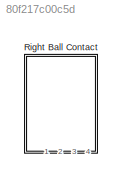
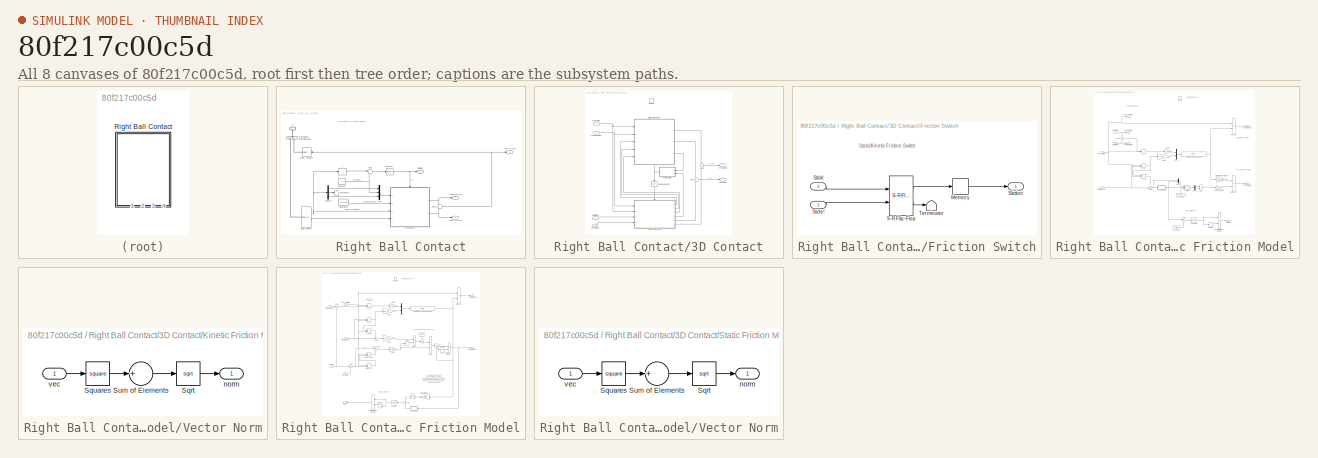
[diagram: thumbnail index - all 8 canvases of the model, root first then tree order]
MODEL slx_80f217c00c5d
KIND model
BLOCK [SubSystem] Right Ball Contact
  Ports = [0, 4, 0, 0, 0, 1]
  RequestExecContextInheritance = off
BLOCK [SubSystem] Right Ball Contact/3D Contact
  Ports = [4, 2, 1]
  RequestExecContextInheritance = off
BLOCK [EnablePort] Right Ball Contact/3D Contact/Contact!
  Ports = []
  StatesWhenEnabling = reset
BLOCK [Outport] Right Ball Contact/3D Contact/FnVec [N N N]
  AttributesFormatString = when disabled: %<OutputWhenDisabled>
  IconDisplay = Port number
  InitialOutput = [0 0 0]
  OutputWhenDisabled = reset
BLOCK [SubSystem] Right Ball Contact/3D Contact/Friction Switch
  Ports = [2, 1]
  RequestExecContextInheritance = off
BLOCK [Memory] Right Ball Contact/3D Contact/Friction Switch/Memory
BLOCK [Reference] Right Ball Contact/3D Contact/Friction Switch/S-R Flip-Flop  REF=simulink_extras/Flip Flops/S-R
Flip-Flop
  Ports = [2, 2]
  SourceBlock = simulink_extras/Flip Flops/S-R\nFlip-Flop
  SourceType = SRFlipFlop
  initial_condition = 0
BLOCK [Inport] Right Ball Contact/3D Contact/Friction Switch/Slide!
  IconDisplay = Port number
BLOCK [Inport] Right Ball Contact/3D Contact/Friction Switch/Stick!
  IconDisplay = Port number
  Port = 2
BLOCK [Outport] Right Ball Contact/3D Contact/Friction Switch/Stiction
  IconDisplay = Port number
BLOCK [Terminator] Right Ball Contact/3D Contact/Friction Switch/Terminator
BLOCK [Outport] Right Ball Contact/3D Contact/FtVec [N N N]
  AttributesFormatString = when disabled: %<OutputWhenDisabled>
  IconDisplay = Port number
  InitialOutput = [0 0 0]
  OutputWhenDisabled = reset
  Port = 2
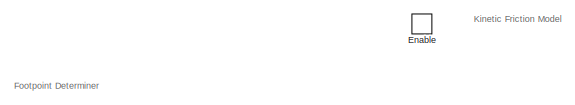
[diagram: Right Ball Contact/3D Contact/Kinetic Friction Model - part 1/2, top center region]
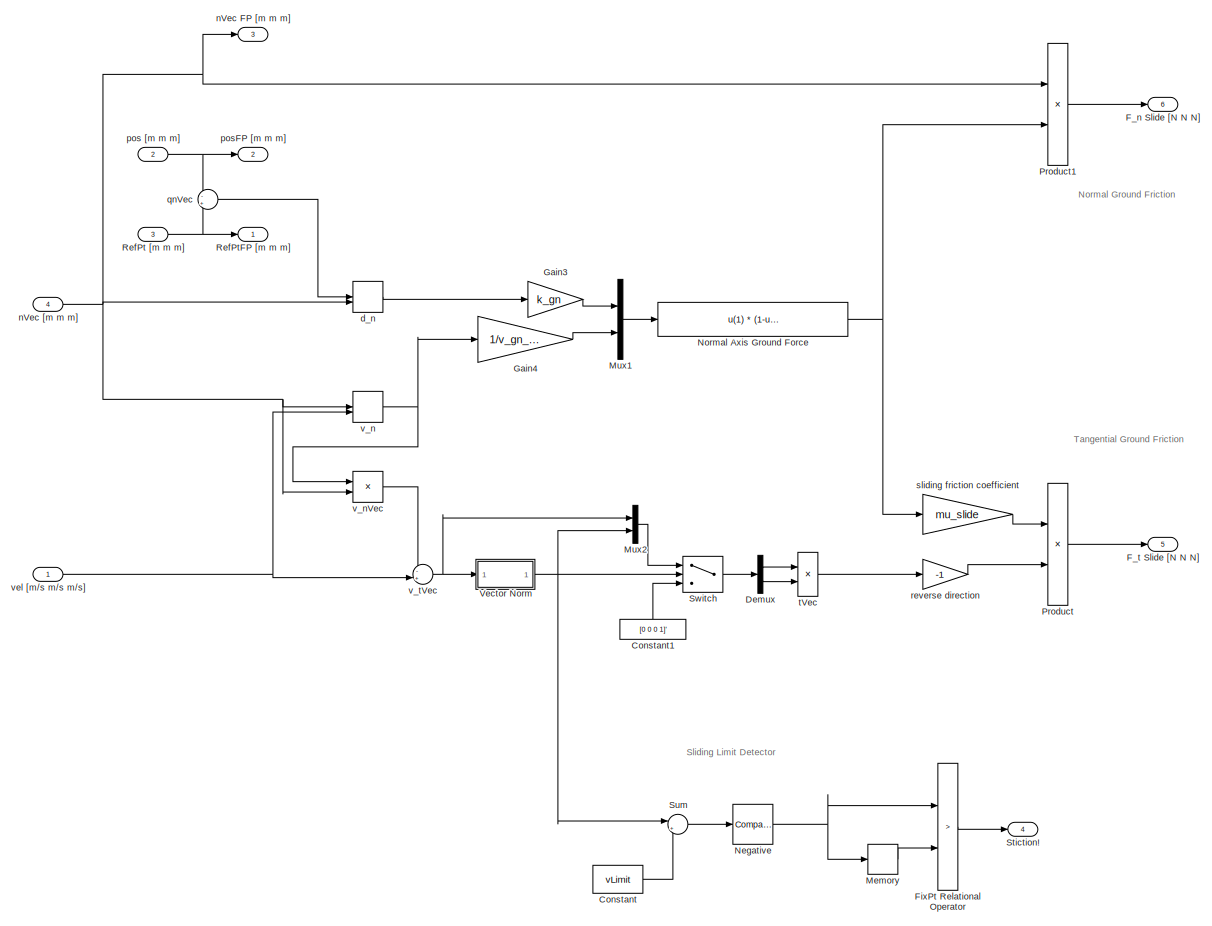
[diagram: Right Ball Contact/3D Contact/Kinetic Friction Model - part 2/2, most of the canvas]
BLOCK [SubSystem] Right Ball Contact/3D Contact/Kinetic Friction Model
  Ports = [4, 6, 1]
  RequestExecContextInheritance = off
BLOCK [Constant] Right Ball Contact/3D Contact/Kinetic Friction Model/Constant
  Value = vLimit
BLOCK [Constant] Right Ball Contact/3D Contact/Kinetic Friction Model/Constant1
  Value = [0 0 0 1]'
BLOCK [Demux] Right Ball Contact/3D Contact/Kinetic Friction Model/Demux
  DisplayOption = bar
  Outputs = [3 1]
  Ports = [1, 2]
BLOCK [EnablePort] Right Ball Contact/3D Contact/Kinetic Friction Model/Enable
  Ports = []
  StatesWhenEnabling = reset
  ZeroCross = off
BLOCK [Outport] Right Ball Contact/3D Contact/Kinetic Friction Model/F_n Slide [N N N]
  AttributesFormatString = initial = '%<InitialOutput>'\nwhen disabled = '%<OutputWhenDisabled>'
  IconDisplay = Port number
  InitialOutput = [0 0 0]
  OutputWhenDisabled = reset
  Port = 6
BLOCK [Outport] Right Ball Contact/3D Contact/Kinetic Friction Model/F_t Slide [N N N]
  AttributesFormatString = initial = '%<InitialOutput>'\nwhen disabled = '%<OutputWhenDisabled>'
  IconDisplay = Port number
  InitialOutput = [0 0 0]
  OutputWhenDisabled = reset
  Port = 5
BLOCK [RelationalOperator] Right Ball Contact/3D Contact/Kinetic Friction Model/FixPt Relational Operator
  InputSameDT = off
  Operator = >
  OutDataTypeStr = boolean
  Ports = [2, 1]
  ZeroCross = off
BLOCK [Gain] Right Ball Contact/3D Contact/Kinetic Friction Model/Gain3
  Gain = k_gn
  OutDataTypeStr = Inherit: Inherit via internal rule
  ParamDataTypeStr = Inherit: Inherit via internal rule
  SaturateOnIntegerOverflow = off
BLOCK [Gain] Right Ball Contact/3D Contact/Kinetic Friction Model/Gain4
  Gain = 1/v_gn_max
  OutDataTypeStr = Inherit: Inherit via internal rule
  ParamDataTypeStr = Inherit: Inherit via internal rule
  SaturateOnIntegerOverflow = off
BLOCK [Memory] Right Ball Contact/3D Contact/Kinetic Friction Model/Memory
BLOCK [Mux] Right Ball Contact/3D Contact/Kinetic Friction Model/Mux1
  DisplayOption = bar
  Inputs = 2
  Ports = [2, 1]
BLOCK [Mux] Right Ball Contact/3D Contact/Kinetic Friction Model/Mux2
  DisplayOption = bar
  Inputs = 2
  Ports = [2, 1]
BLOCK [Reference] Right Ball Contact/3D Contact/Kinetic Friction Model/Negative  REF=simulink/Logic and Bit
Operations/Compare
To Zero
  OutDataTypeStr = boolean
  Ports = [1, 1]
  SourceBlock = simulink/Logic and Bit\nOperations/Compare\nTo Zero
  SourceType = Compare To Zero
  ZeroCross = on
  relop = <
BLOCK [Fcn] Right Ball Contact/3D Contact/Kinetic Friction Model/Normal Axis Ground Force
  Expr = u(1)  *  (1-u(2)) * (u(2)<1)
BLOCK [Product] Right Ball Contact/3D Contact/Kinetic Friction Model/Product
  InputSameDT = off
  OutDataTypeStr = Inherit: Inherit via internal rule
  Ports = [2, 1]
  SaturateOnIntegerOverflow = off
BLOCK [Product] Right Ball Contact/3D Contact/Kinetic Friction Model/Product1
  InputSameDT = off
  OutDataTypeStr = Inherit: Inherit via internal rule
  Ports = [2, 1]
  SaturateOnIntegerOverflow = off
BLOCK [Inport] Right Ball Contact/3D Contact/Kinetic Friction Model/RefPt [m m m]
  IconDisplay = Port number
  Port = 3
BLOCK [Outport] Right Ball Contact/3D Contact/Kinetic Friction Model/RefPtFP [m m m]
  AttributesFormatString = initial = '%<InitialOutput>'\nwhen disabled = '%<OutputWhenDisabled>'
  IconDisplay = Port number
  InitialOutput = [0 0 0]
BLOCK [Outport] Right Ball Contact/3D Contact/Kinetic Friction Model/Stiction!
  AttributesFormatString = initial = '%<InitialOutput>'\nwhen disabled = '%<OutputWhenDisabled>'
  IconDisplay = Port number
  InitialOutput = 0
  OutputWhenDisabled = reset
  Port = 4
BLOCK [Sum] Right Ball Contact/3D Contact/Kinetic Friction Model/Sum
  IconShape = round
  InputSameDT = off
  Inputs = |+-
  OutDataTypeStr = Inherit: Inherit via internal rule
  Ports = [2, 1]
  SaturateOnIntegerOverflow = off
BLOCK [Switch] Right Ball Contact/3D Contact/Kinetic Friction Model/Switch
  AttributesFormatString = >%<Threshold>?
  Criteria = u2 > Threshold
  InputSameDT = off
  SaturateOnIntegerOverflow = off
  Threshold = 0.9*vLimit
BLOCK [SubSystem] Right Ball Contact/3D Contact/Kinetic Friction Model/Vector Norm
  Ports = [1, 1]
  RequestExecContextInheritance = off
BLOCK [Sqrt] Right Ball Contact/3D Contact/Kinetic Friction Model/Vector Norm/Sqrt
  AlgorithmType = Newton-Raphson
  OutputSignalType = real
BLOCK [Math] Right Ball Contact/3D Contact/Kinetic Friction Model/Vector Norm/Squares
  Operator = square
  OutputSignalType = real
  Ports = [1, 1]
BLOCK [Sum] Right Ball Contact/3D Contact/Kinetic Friction Model/Vector Norm/Sum of Elements
  IconShape = round
  InputSameDT = off
  Inputs = +
  OutDataTypeStr = Inherit: Inherit via internal rule
  Ports = [1, 1]
  SaturateOnIntegerOverflow = off
BLOCK [Outport] Right Ball Contact/3D Contact/Kinetic Friction Model/Vector Norm/norm
  IconDisplay = Port number
BLOCK [Inport] Right Ball Contact/3D Contact/Kinetic Friction Model/Vector Norm/vec
  IconDisplay = Port number
BLOCK [DotProduct] Right Ball Contact/3D Contact/Kinetic Friction Model/d_n
  OutDataTypeStr = Inherit: Inherit via internal rule
BLOCK [Outport] Right Ball Contact/3D Contact/Kinetic Friction Model/nVec FP [m m m]
  AttributesFormatString = initial = '%<InitialOutput>'\nwhen disabled = '%<OutputWhenDisabled>'
  IconDisplay = Port number
  InitialOutput = 0
  Port = 3
BLOCK [Inport] Right Ball Contact/3D Contact/Kinetic Friction Model/nVec [m m m]
  IconDisplay = Port number
  Port = 4
BLOCK [Inport] Right Ball Contact/3D Contact/Kinetic Friction Model/pos [m m m]
  IconDisplay = Port number
  Port = 2
BLOCK [Outport] Right Ball Contact/3D Contact/Kinetic Friction Model/posFP [m m m]
  AttributesFormatString = initial = '%<InitialOutput>'\nwhen disabled = '%<OutputWhenDisabled>'
  IconDisplay = Port number
  InitialOutput = [0 0 0]
  Port = 2
BLOCK [Sum] Right Ball Contact/3D Contact/Kinetic Friction Model/qnVec
  IconShape = round
  InputSameDT = off
  Inputs = -+
  OutDataTypeStr = Inherit: Inherit via internal rule
  Ports = [2, 1]
  SaturateOnIntegerOverflow = off
BLOCK [Gain] Right Ball Contact/3D Contact/Kinetic Friction Model/reverse direction
  Gain = -1
  OutDataTypeStr = Inherit: Inherit via internal rule
  ParamDataTypeStr = Inherit: Inherit via internal rule
  SaturateOnIntegerOverflow = off
BLOCK [Gain] Right Ball Contact/3D Contact/Kinetic Friction Model/sliding friction coefficient
  Gain = mu_slide
  OutDataTypeStr = Inherit: Inherit via internal rule
  ParamDataTypeStr = Inherit: Inherit via internal rule
  SaturateOnIntegerOverflow = off
BLOCK [Product] Right Ball Contact/3D Contact/Kinetic Friction Model/tVec
  InputSameDT = off
  Inputs = */
  OutDataTypeStr = Inherit: Inherit via internal rule
  Ports = [2, 1]
  SaturateOnIntegerOverflow = off
BLOCK [DotProduct] Right Ball Contact/3D Contact/Kinetic Friction Model/v_n
  OutDataTypeStr = Inherit: Inherit via internal rule
BLOCK [Product] Right Ball Contact/3D Contact/Kinetic Friction Model/v_nVec
  InputSameDT = off
  OutDataTypeStr = Inherit: Inherit via internal rule
  Ports = [2, 1]
  SaturateOnIntegerOverflow = off
BLOCK [Sum] Right Ball Contact/3D Contact/Kinetic Friction Model/v_tVec
  IconShape = round
  InputSameDT = off
  Inputs = -+|
  OutDataTypeStr = Inherit: Inherit via internal rule
  Ports = [2, 1]
  SaturateOnIntegerOverflow = off
BLOCK [Inport] Right Ball Contact/3D Contact/Kinetic Friction Model/vel [m//s m//s m//s]
  IconDisplay = Port number
BLOCK [Logic] Right Ball Contact/3D Contact/Logical Operator
  AllPortsSameDT = off
  Operator = NOT
  OutDataTypeStr = boolean
  Ports = [1, 1]
BLOCK [Inport] Right Ball Contact/3D Contact/RefPt [m m m]
  IconDisplay = Port number
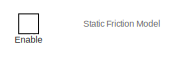
[diagram: Right Ball Contact/3D Contact/Static Friction Model - part 1/2, top center region]
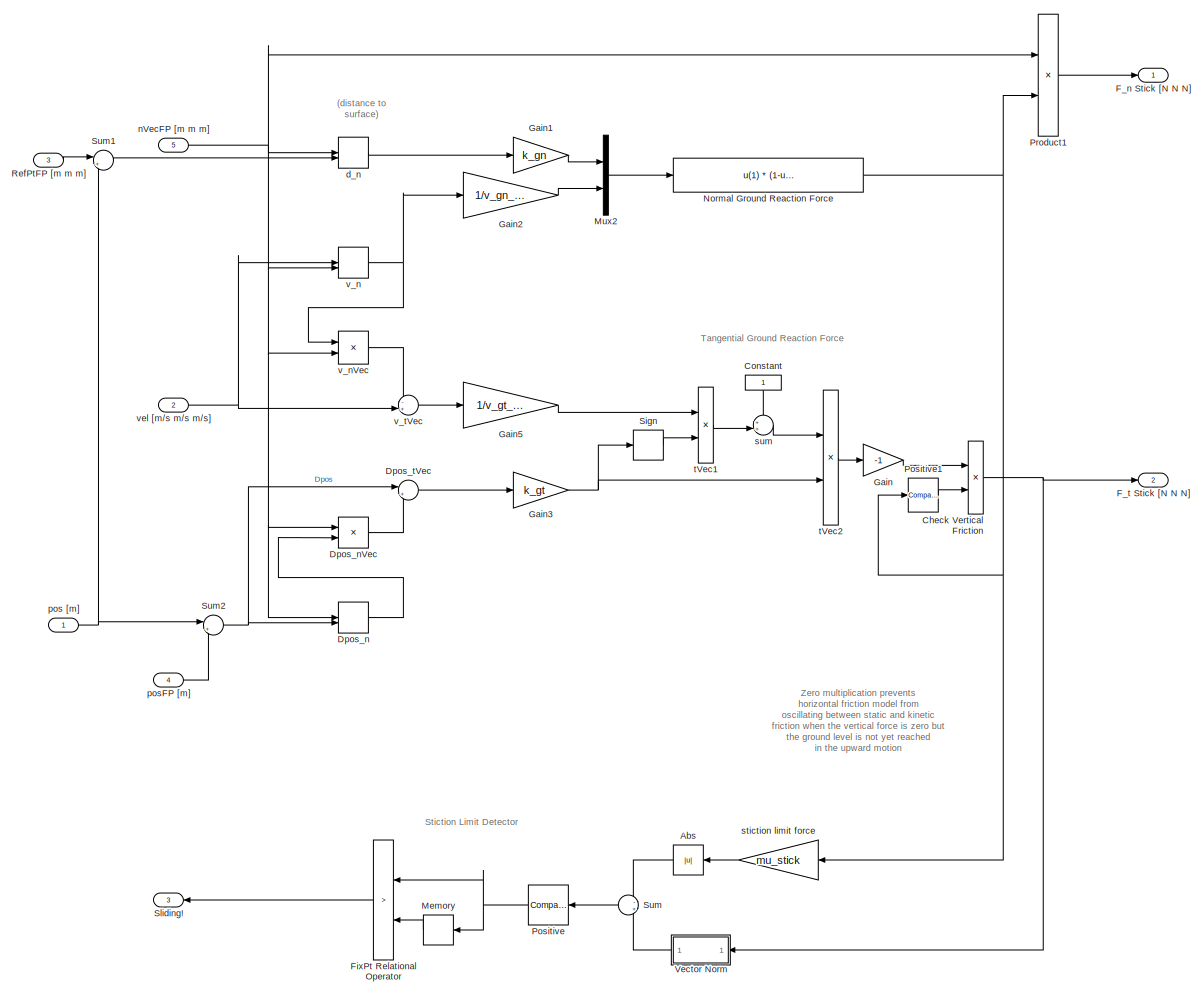
[diagram: Right Ball Contact/3D Contact/Static Friction Model - part 2/2, most of the canvas]
BLOCK [SubSystem] Right Ball Contact/3D Contact/Static Friction Model
  Ports = [5, 3, 1]
  RequestExecContextInheritance = off
BLOCK [Abs] Right Ball Contact/3D Contact/Static Friction Model/Abs
  SaturateOnIntegerOverflow = off
BLOCK [Product] Right Ball Contact/3D Contact/Static Friction Model/Check Vertical Friction
  InputSameDT = off
  OutDataTypeStr = Inherit: Inherit via internal rule
  Ports = [2, 1]
  SaturateOnIntegerOverflow = off
BLOCK [Constant] Right Ball Contact/3D Contact/Static Friction Model/Constant
BLOCK [DotProduct] Right Ball Contact/3D Contact/Static Friction Model/Dpos_n
  OutDataTypeStr = Inherit: Inherit via internal rule
BLOCK [Product] Right Ball Contact/3D Contact/Static Friction Model/Dpos_nVec
  InputSameDT = off
  OutDataTypeStr = Inherit: Inherit via internal rule
  Ports = [2, 1]
  SaturateOnIntegerOverflow = off
BLOCK [Sum] Right Ball Contact/3D Contact/Static Friction Model/Dpos_tVec
  IconShape = round
  InputSameDT = off
  Inputs = |+-
  OutDataTypeStr = Inherit: Inherit via internal rule
  Ports = [2, 1]
  SaturateOnIntegerOverflow = off
BLOCK [EnablePort] Right Ball Contact/3D Contact/Static Friction Model/Enable
  Ports = []
  StatesWhenEnabling = reset
  ZeroCross = off
BLOCK [Outport] Right Ball Contact/3D Contact/Static Friction Model/F_n Stick [N N N]
  AttributesFormatString = initial = '%<InitialOutput>'\nwhen disabled = '%<OutputWhenDisabled>'
  IconDisplay = Port number
  InitialOutput = [0 0 0]
  OutputWhenDisabled = reset
BLOCK [Outport] Right Ball Contact/3D Contact/Static Friction Model/F_t Stick [N N N]
  AttributesFormatString = when disabled: %<OutputWhenDisabled>\ninitial: %<InitialOutput>
  IconDisplay = Port number
  InitialOutput = [0 0 0]
  OutputWhenDisabled = reset
  Port = 2
BLOCK [RelationalOperator] Right Ball Contact/3D Contact/Static Friction Model/FixPt Relational Operator
  InputSameDT = off
  Operator = >
  OutDataTypeStr = boolean
  Ports = [2, 1]
  ZeroCross = off
BLOCK [Gain] Right Ball Contact/3D Contact/Static Friction Model/Gain
  Gain = -1
  OutDataTypeStr = Inherit: Inherit via internal rule
  ParamDataTypeStr = Inherit: Inherit via internal rule
  SaturateOnIntegerOverflow = off
BLOCK [Gain] Right Ball Contact/3D Contact/Static Friction Model/Gain1
  Gain = k_gn
  OutDataTypeStr = Inherit: Inherit via internal rule
  ParamDataTypeStr = Inherit: Inherit via internal rule
  SaturateOnIntegerOverflow = off
BLOCK [Gain] Right Ball Contact/3D Contact/Static Friction Model/Gain2
  Gain = 1/v_gn_max
  OutDataTypeStr = Inherit: Inherit via internal rule
  ParamDataTypeStr = Inherit: Inherit via internal rule
  SaturateOnIntegerOverflow = off
BLOCK [Gain] Right Ball Contact/3D Contact/Static Friction Model/Gain3
  Gain = k_gt
  OutDataTypeStr = Inherit: Inherit via internal rule
  ParamDataTypeStr = Inherit: Inherit via internal rule
  SaturateOnIntegerOverflow = off
BLOCK [Gain] Right Ball Contact/3D Contact/Static Friction Model/Gain5
  Gain = 1/v_gt_max
  OutDataTypeStr = Inherit: Inherit via internal rule
  ParamDataTypeStr = Inherit: Inherit via internal rule
  SaturateOnIntegerOverflow = off
BLOCK [Memory] Right Ball Contact/3D Contact/Static Friction Model/Memory
BLOCK [Mux] Right Ball Contact/3D Contact/Static Friction Model/Mux2
  DisplayOption = bar
  Inputs = 2
  Ports = [2, 1]
BLOCK [Fcn] Right Ball Contact/3D Contact/Static Friction Model/Normal Ground Reaction Force
  Expr = u(1)  *  (1-u(2)) * (u(2)<1)
BLOCK [Reference] Right Ball Contact/3D Contact/Static Friction Model/Positive  REF=simulink/Logic and Bit
Operations/Compare
To Zero
  OutDataTypeStr = boolean
  Ports = [1, 1]
  SourceBlock = simulink/Logic and Bit\nOperations/Compare\nTo Zero
  SourceType = Compare To Zero
  ZeroCross = on
  relop = >
BLOCK [Reference] Right Ball Contact/3D Contact/Static Friction Model/Positive1  REF=simulink/Logic and Bit
Operations/Compare
To Zero
  OutDataTypeStr = boolean
  Ports = [1, 1]
  SourceBlock = simulink/Logic and Bit\nOperations/Compare\nTo Zero
  SourceType = Compare To Zero
  ZeroCross = on
  relop = >
BLOCK [Product] Right Ball Contact/3D Contact/Static Friction Model/Product1
  InputSameDT = off
  OutDataTypeStr = Inherit: Inherit via internal rule
  Ports = [2, 1]
  SaturateOnIntegerOverflow = off
BLOCK [Inport] Right Ball Contact/3D Contact/Static Friction Model/RefPtFP [m m m]
  IconDisplay = Port number
  Port = 3
BLOCK [Signum] Right Ball Contact/3D Contact/Static Friction Model/Sign
  ZeroCross = off
BLOCK [Outport] Right Ball Contact/3D Contact/Static Friction Model/Sliding!
  AttributesFormatString = when disabled: %<OutputWhenDisabled>\ninitial: %<InitialOutput>
  IconDisplay = Port number
  InitialOutput = 0
  OutputWhenDisabled = reset
  Port = 3
BLOCK [Sum] Right Ball Contact/3D Contact/Static Friction Model/Sum
  IconShape = round
  InputSameDT = off
  Inputs = -+
  OutDataTypeStr = Inherit: Inherit via internal rule
  Ports = [2, 1]
  SaturateOnIntegerOverflow = off
BLOCK [Sum] Right Ball Contact/3D Contact/Static Friction Model/Sum1
  IconShape = round
  InputSameDT = off
  Inputs = |+-
  OutDataTypeStr = Inherit: Inherit via internal rule
  Ports = [2, 1]
  SaturateOnIntegerOverflow = off
BLOCK [Sum] Right Ball Contact/3D Contact/Static Friction Model/Sum2
  IconShape = round
  InputSameDT = off
  Inputs = |+-
  OutDataTypeStr = Inherit: Inherit via internal rule
  Ports = [2, 1]
  SaturateOnIntegerOverflow = off
BLOCK [SubSystem] Right Ball Contact/3D Contact/Static Friction Model/Vector Norm
  Ports = [1, 1]
  RequestExecContextInheritance = off
BLOCK [Sqrt] Right Ball Contact/3D Contact/Static Friction Model/Vector Norm/Sqrt
  AlgorithmType = Newton-Raphson
  OutputSignalType = real
BLOCK [Math] Right Ball Contact/3D Contact/Static Friction Model/Vector Norm/Squares
  Operator = square
  OutputSignalType = real
  Ports = [1, 1]
BLOCK [Sum] Right Ball Contact/3D Contact/Static Friction Model/Vector Norm/Sum of Elements
  IconShape = round
  InputSameDT = off
  Inputs = +
  OutDataTypeStr = Inherit: Inherit via internal rule
  Ports = [1, 1]
  SaturateOnIntegerOverflow = off
BLOCK [Outport] Right Ball Contact/3D Contact/Static Friction Model/Vector Norm/norm
  IconDisplay = Port number
BLOCK [Inport] Right Ball Contact/3D Contact/Static Friction Model/Vector Norm/vec
  IconDisplay = Port number
BLOCK [DotProduct] Right Ball Contact/3D Contact/Static Friction Model/d_n
  OutDataTypeStr = Inherit: Inherit via internal rule
BLOCK [Inport] Right Ball Contact/3D Contact/Static Friction Model/nVecFP [m m m]
  IconDisplay = Port number
  Port = 5
BLOCK [Inport] Right Ball Contact/3D Contact/Static Friction Model/pos [m]
  IconDisplay = Port number
BLOCK [Inport] Right Ball Contact/3D Contact/Static Friction Model/posFP [m]
  IconDisplay = Port number
  Port = 4
BLOCK [Gain] Right Ball Contact/3D Contact/Static Friction Model/stiction limit force
  Gain = mu_stick
  OutDataTypeStr = Inherit: Inherit via internal rule
  ParamDataTypeStr = Inherit: Inherit via internal rule
  SaturateOnIntegerOverflow = off
BLOCK [Sum] Right Ball Contact/3D Contact/Static Friction Model/sum
  IconShape = round
  InputSameDT = off
  Inputs = ++|
  OutDataTypeStr = Inherit: Inherit via internal rule
  Ports = [2, 1]
  SaturateOnIntegerOverflow = off
BLOCK [Product] Right Ball Contact/3D Contact/Static Friction Model/tVec1
  InputSameDT = off
  Inputs = **
  OutDataTypeStr = Inherit: Inherit via internal rule
  Ports = [2, 1]
  SaturateOnIntegerOverflow = off
BLOCK [Product] Right Ball Contact/3D Contact/Static Friction Model/tVec2
  InputSameDT = off
  Inputs = **
  OutDataTypeStr = Inherit: Inherit via internal rule
  Ports = [2, 1]
  SaturateOnIntegerOverflow = off
BLOCK [DotProduct] Right Ball Contact/3D Contact/Static Friction Model/v_n
  OutDataTypeStr = Inherit: Inherit via internal rule
BLOCK [Product] Right Ball Contact/3D Contact/Static Friction Model/v_nVec
  InputSameDT = off
  OutDataTypeStr = Inherit: Inherit via internal rule
  Ports = [2, 1]
  SaturateOnIntegerOverflow = off
BLOCK [Sum] Right Ball Contact/3D Contact/Static Friction Model/v_tVec
  IconShape = round
  InputSameDT = off
  Inputs = -+|
  OutDataTypeStr = Inherit: Inherit via internal rule
  Ports = [2, 1]
  SaturateOnIntegerOverflow = off
BLOCK [Inport] Right Ball Contact/3D Contact/Static Friction Model/vel [m//s m//s m//s]
  IconDisplay = Port number
  Port = 2
BLOCK [Sum] Right Ball Contact/3D Contact/Sum
  IconShape = round
  InputSameDT = off
  OutDataTypeStr = Inherit: Inherit via internal rule
  Ports = [2, 1]
  SaturateOnIntegerOverflow = off
BLOCK [Sum] Right Ball Contact/3D Contact/Sum1
  IconShape = round
  InputSameDT = off
  OutDataTypeStr = Inherit: Inherit via internal rule
  Ports = [2, 1]
  SaturateOnIntegerOverflow = off
BLOCK [Inport] Right Ball Contact/3D Contact/nVec [m m m]
  IconDisplay = Port number
  Port = 2
BLOCK [Inport] Right Ball Contact/3D Contact/pVec [m m m]
  IconDisplay = Port number
  Port = 3
BLOCK [Inport] Right Ball Contact/3D Contact/vVec [m//s m//s m//s]
  IconDisplay = Port number
  Port = 4
BLOCK [Reference] Right Ball Contact/Body Actuator  REF=mblibv1/Sensors & 
Actuators/Body Actuator
  AccelerationUnits = m/s^2
  ActiveIO = off
  ActuationStyle = Force
  Angle = off
  AngleUnits = deg
  ArcAccelerationUnits = deg/s^2
  ArcVelocityUnits = deg/s
  ClassName = BodyActuatorForceTorque
  CoordPosition = on
  CoordPositionUnits = m
  DialogClass = MechanicalActuatorBlock
  Force = on
  ForceUnits = N
  PhysicalDomain = Mechanical
  PortType = blob
  Ports = [1, 0, 0, 0, 0, 0, 1]
  ReferenceFrame = Absolute (World)
  SourceBlock = mblibv1/Sensors & \nActuators/Body Actuator
  SourceType = Body Actuator
  Torque = off
  TorqueUnits = N*m
  UpdateFromCAD = off
  VelocityUnits = m/s
  Width = 3
BLOCK [Reference] Right Ball Contact/Body Sensor  REF=mblibv1/Sensors & 
Actuators/Body Sensor
  Acceleration = off
  AccelerationUnits = m/s^2
  ActiveIO = off
  Angle = on
  AngleUnits = deg
  ArcAcceleration = off
  ArcAccelerationUnits = deg/s^2
  ArcVelocity = off
  ArcVelocityUnits = deg/s
  ClassName = BodySensor
  CoordPosition = on
  CoordPositionUnits = m
  DialogClass = MechanicalSensorBlock
  Muxed = off
  OutputVector = [ 3 3 ]
  PhysicalDomain = Mechanical
  PortType = blob
  Ports = [0, 2, 0, 0, 0, 1]
  Pose = off
  Quaternion = on
  QuaternionDDT = off
  QuaternionDT = off
  QuaternionUnits = off
  ReferenceFrame = Absolute (World)
  SourceBlock = mblibv1/Sensors & \nActuators/Body Sensor
  SourceType = Body Sensor
  UpdateFromCAD = off
  Velocity = on
  VelocityUnits = m/s
  Width = 6
BLOCK [Constant] Right Ball Contact/Constant
  Value = 0
BLOCK [Constant] Right Ball Contact/Constant1
  Value = [0 1 0]
BLOCK [Demux] Right Ball Contact/Demux
  DisplayOption = bar
  Outputs = 3
  Ports = [1, 3]
BLOCK [PMIOPort] Right Ball Contact/F
  Port = 1
  Side = Left
BLOCK [Outport] Right Ball Contact/GRF [N N N]
  IconDisplay = Port number
  Port = 2
BLOCK [Outport] Right Ball Contact/GRFn [N N N]
  IconDisplay = Port number
  Port = 4
BLOCK [Outport] Right Ball Contact/GRFt [N N N]
  IconDisplay = Port number
  Port = 3
BLOCK [Reference] Right Ball Contact/Mechanical Branching Bar  REF=mblibv1/Utilities/Mechanical
Branching
Bar
  ClassName = BranchingBar
  DialogClass = MechanicalBranchingBarBlock
  LConnTagsString = _newl0
  NumSAPorts = 2
  Ports = [0, 0, 0, 0, 0, 1, 2]
  RConnTagsString = SA0|SA1
  SourceBlock = mblibv1/Utilities/Mechanical\nBranching\nBar
  SourceType = Mechanical Branching Bar
  UpdateFromCAD = off
BLOCK [Mux] Right Ball Contact/Mux
  DisplayOption = bar
  Inputs = 3
  Ports = [3, 1]
BLOCK [Outport] Right Ball Contact/RBallCnt
  IconDisplay = Port number
BLOCK [Sum] Right Ball Contact/Sum
  IconShape = round
  InputSameDT = off
  Inputs = |+-
  OutDataTypeStr = Inherit: Inherit via internal rule
  Ports = [2, 1]
  SaturateOnIntegerOverflow = off
BLOCK [Sum] Right Ball Contact/Sum1
  IconShape = round
  InputSameDT = off
  OutDataTypeStr = Inherit: Inherit via internal rule
  Ports = [2, 1]
  SaturateOnIntegerOverflow = off
BLOCK [Terminator] Right Ball Contact/Terminator
BLOCK [Reference] Right Ball Contact/contact?  REF=simulink/Logic and Bit
Operations/Compare
To Zero
  OutDataTypeStr = boolean
  Ports = [1, 1]
  SourceBlock = simulink/Logic and Bit\nOperations/Compare\nTo Zero
  SourceType = Compare To Zero
  ZeroCross = on
  relop = <=
BLOCK [Selector] Right Ball Contact/y
  Indices = 2
  InputPortWidth = 3
  Ports = [1, 1]
ANNOTATION Right Ball Contact: 3D Ground Interaction Model
ANNOTATION Right Ball Contact/3D Contact/Friction Switch: Static/Kinetic Friction Switch
ANNOTATION Right Ball Contact/3D Contact/Kinetic Friction Model: Footpoint Determiner
ANNOTATION Right Ball Contact/3D Contact/Kinetic Friction Model: Kinetic Friction Model
ANNOTATION Right Ball Contact/3D Contact/Kinetic Friction Model: Normal Ground Friction
ANNOTATION Right Ball Contact/3D Contact/Kinetic Friction Model: Sliding Limit Detector
ANNOTATION Right Ball Contact/3D Contact/Kinetic Friction Model: Tangential Ground Friction
ANNOTATION Right Ball Contact/3D Contact/Static Friction Model: (distance to surface)
ANNOTATION Right Ball Contact/3D Contact/Static Friction Model: Static Friction Model
ANNOTATION Right Ball Contact/3D Contact/Static Friction Model: Stiction Limit Detector
ANNOTATION Right Ball Contact/3D Contact/Static Friction Model: Tangential Ground Reaction Force
ANNOTATION Right Ball Contact/3D Contact/Static Friction Model: Zero multiplication prevents horizontal friction model from oscillating between static and kinetic friction when the vertical force is zero but the ground level is not yet reached in the upward motion
LINE Right Ball Contact/3D Contact/Friction Switch/Memory:1 -> Right Ball Contact/3D Contact/Friction Switch/Stiction:1
LINE Right Ball Contact/3D Contact/Friction Switch/S-R Flip-Flop:1 -> Right Ball Contact/3D Contact/Friction Switch/Memory:1
LINE Right Ball Contact/3D Contact/Friction Switch/S-R Flip-Flop:2 -> Right Ball Contact/3D Contact/Friction Switch/Terminator:1
LINE Right Ball Contact/3D Contact/Friction Switch/Slide!:1 -> Right Ball Contact/3D Contact/Friction Switch/S-R Flip-Flop:2
LINE Right Ball Contact/3D Contact/Friction Switch/Stick!:1 -> Right Ball Contact/3D Contact/Friction Switch/S-R Flip-Flop:1
NET Right Ball Contact/3D Contact/Friction Switch:1 -> Right Ball Contact/3D Contact/Logical Operator:1, Right Ball Contact/3D Contact/Static Friction Model:enable
LINE Right Ball Contact/3D Contact/Kinetic Friction Model/Constant1:1 -> Right Ball Contact/3D Contact/Kinetic Friction Model/Switch:3
LINE Right Ball Contact/3D Contact/Kinetic Friction Model/Constant:1 -> Right Ball Contact/3D Contact/Kinetic Friction Model/Sum:2
LINE Right Ball Contact/3D Contact/Kinetic Friction Model/Demux:1 -> Right Ball Contact/3D Contact/Kinetic Friction Model/tVec:1
LINE Right Ball Contact/3D Contact/Kinetic Friction Model/Demux:2 -> Right Ball Contact/3D Contact/Kinetic Friction Model/tVec:2
LINE Right Ball Contact/3D Contact/Kinetic Friction Model/FixPt Relational Operator:1 -> Right Ball Contact/3D Contact/Kinetic Friction Model/Stiction!:1
LINE Right Ball Contact/3D Contact/Kinetic Friction Model/Gain3:1 -> Right Ball Contact/3D Contact/Kinetic Friction Model/Mux1:1
LINE Right Ball Contact/3D Contact/Kinetic Friction Model/Gain4:1 -> Right Ball Contact/3D Contact/Kinetic Friction Model/Mux1:2
LINE Right Ball Contact/3D Contact/Kinetic Friction Model/Memory:1 -> Right Ball Contact/3D Contact/Kinetic Friction Model/FixPt Relational Operator:2
LINE Right Ball Contact/3D Contact/Kinetic Friction Model/Mux1:1 -> Right Ball Contact/3D Contact/Kinetic Friction Model/Normal Axis Ground Force:1
LINE Right Ball Contact/3D Contact/Kinetic Friction Model/Mux2:1 -> Right Ball Contact/3D Contact/Kinetic Friction Model/Switch:1
NET Right Ball Contact/3D Contact/Kinetic Friction Model/Negative:1 -> Right Ball Contact/3D Contact/Kinetic Friction Model/FixPt Relational Operator:1, Right Ball Contact/3D Contact/Kinetic Friction Model/Memory:1
NET Right Ball Contact/3D Contact/Kinetic Friction Model/Normal Axis Ground Force:1 -> Right Ball Contact/3D Contact/Kinetic Friction Model/Product1:2, Right Ball Contact/3D Contact/Kinetic Friction Model/sliding friction coefficient:1
LINE Right Ball Contact/3D Contact/Kinetic Friction Model/Product1:1 -> Right Ball Contact/3D Contact/Kinetic Friction Model/F_n Slide [N N N]:1
LINE Right Ball Contact/3D Contact/Kinetic Friction Model/Product:1 -> Right Ball Contact/3D Contact/Kinetic Friction Model/F_t Slide [N N N]:1
NET Right Ball Contact/3D Contact/Kinetic Friction Model/RefPt [m m m]:1 -> Right Ball Contact/3D Contact/Kinetic Friction Model/RefPtFP [m m m]:1, Right Ball Contact/3D Contact/Kinetic Friction Model/qnVec:2
LINE Right Ball Contact/3D Contact/Kinetic Friction Model/Sum:1 -> Right Ball Contact/3D Contact/Kinetic Friction Model/Negative:1
LINE Right Ball Contact/3D Contact/Kinetic Friction Model/Switch:1 -> Right Ball Contact/3D Contact/Kinetic Friction Model/Demux:1
LINE Right Ball Contact/3D Contact/Kinetic Friction Model/Vector Norm/Sqrt:1 -> Right Ball Contact/3D Contact/Kinetic Friction Model/Vector Norm/norm:1
LINE Right Ball Contact/3D Contact/Kinetic Friction Model/Vector Norm/Squares:1 -> Right Ball Contact/3D Contact/Kinetic Friction Model/Vector Norm/Sum of Elements:1
LINE Right Ball Contact/3D Contact/Kinetic Friction Model/Vector Norm/Sum of Elements:1 -> Right Ball Contact/3D Contact/Kinetic Friction Model/Vector Norm/Sqrt:1
LINE Right Ball Contact/3D Contact/Kinetic Friction Model/Vector Norm/vec:1 -> Right Ball Contact/3D Contact/Kinetic Friction Model/Vector Norm/Squares:1
NET Right Ball Contact/3D Contact/Kinetic Friction Model/Vector Norm:1 -> Right Ball Contact/3D Contact/Kinetic Friction Model/Mux2:2, Right Ball Contact/3D Contact/Kinetic Friction Model/Sum:1, Right Ball Contact/3D Contact/Kinetic Friction Model/Switch:2
LINE Right Ball Contact/3D Contact/Kinetic Friction Model/d_n:1 -> Right Ball Contact/3D Contact/Kinetic Friction Model/Gain3:1
NET Right Ball Contact/3D Contact/Kinetic Friction Model/nVec [m m m]:1 -> Right Ball Contact/3D Contact/Kinetic Friction Model/Product1:1, Right Ball Contact/3D Contact/Kinetic Friction Model/d_n:2, Right Ball Contact/3D Contact/Kinetic Friction Model/nVec FP [m m m]:1, Right Ball Contact/3D Contact/Kinetic Friction Model/v_n:1, Right Ball Contact/3D Contact/Kinetic Friction Model/v_nVec:2
NET Right Ball Contact/3D Contact/Kinetic Friction Model/pos [m m m]:1 -> Right Ball Contact/3D Contact/Kinetic Friction Model/posFP [m m m]:1, Right Ball Contact/3D Contact/Kinetic Friction Model/qnVec:1
LINE Right Ball Contact/3D Contact/Kinetic Friction Model/qnVec:1 -> Right Ball Contact/3D Contact/Kinetic Friction Model/d_n:1
LINE Right Ball Contact/3D Contact/Kinetic Friction Model/reverse direction:1 -> Right Ball Contact/3D Contact/Kinetic Friction Model/Product:2
LINE Right Ball Contact/3D Contact/Kinetic Friction Model/sliding friction coefficient:1 -> Right Ball Contact/3D Contact/Kinetic Friction Model/Product:1
LINE Right Ball Contact/3D Contact/Kinetic Friction Model/tVec:1 -> Right Ball Contact/3D Contact/Kinetic Friction Model/reverse direction:1
NET Right Ball Contact/3D Contact/Kinetic Friction Model/v_n:1 -> Right Ball Contact/3D Contact/Kinetic Friction Model/Gain4:1, Right Ball Contact/3D Contact/Kinetic Friction Model/v_nVec:1
LINE Right Ball Contact/3D Contact/Kinetic Friction Model/v_nVec:1 -> Right Ball Contact/3D Contact/Kinetic Friction Model/v_tVec:1
NET Right Ball Contact/3D Contact/Kinetic Friction Model/v_tVec:1 -> Right Ball Contact/3D Contact/Kinetic Friction Model/Mux2:1, Right Ball Contact/3D Contact/Kinetic Friction Model/Vector Norm:1
NET Right Ball Contact/3D Contact/Kinetic Friction Model/vel [m//s m//s m//s]:1 -> Right Ball Contact/3D Contact/Kinetic Friction Model/v_n:2, Right Ball Contact/3D Contact/Kinetic Friction Model/v_tVec:2
LINE Right Ball Contact/3D Contact/Kinetic Friction Model:1 -> Right Ball Contact/3D Contact/Static Friction Model:3
LINE Right Ball Contact/3D Contact/Kinetic Friction Model:2 -> Right Ball Contact/3D Contact/Static Friction Model:4
LINE Right Ball Contact/3D Contact/Kinetic Friction Model:3 -> Right Ball Contact/3D Contact/Static Friction Model:5
LINE Right Ball Contact/3D Contact/Kinetic Friction Model:4 -> Right Ball Contact/3D Contact/Friction Switch:2
LINE Right Ball Contact/3D Contact/Kinetic Friction Model:5 -> Right Ball Contact/3D Contact/Sum:2
LINE Right Ball Contact/3D Contact/Kinetic Friction Model:6 -> Right Ball Contact/3D Contact/Sum1:2
LINE Right Ball Contact/3D Contact/Logical Operator:1 -> Right Ball Contact/3D Contact/Kinetic Friction Model:enable
LINE Right Ball Contact/3D Contact/RefPt [m m m]:1 -> Right Ball Contact/3D Contact/Kinetic Friction Model:3
LINE Right Ball Contact/3D Contact/Static Friction Model/Abs:1 -> Right Ball Contact/3D Contact/Static Friction Model/Sum:1
NET Right Ball Contact/3D Contact/Static Friction Model/Check Vertical Friction:1 -> Right Ball Contact/3D Contact/Static Friction Model/F_t Stick [N N N]:1, Right Ball Contact/3D Contact/Static Friction Model/Vector Norm:1
LINE Right Ball Contact/3D Contact/Static Friction Model/Constant:1 -> Right Ball Contact/3D Contact/Static Friction Model/sum:1
LINE Right Ball Contact/3D Contact/Static Friction Model/Dpos_n:1 -> Right Ball Contact/3D Contact/Static Friction Model/Dpos_nVec:2
LINE Right Ball Contact/3D Contact/Static Friction Model/Dpos_nVec:1 -> Right Ball Contact/3D Contact/Static Friction Model/Dpos_tVec:2
LINE Right Ball Contact/3D Contact/Static Friction Model/Dpos_tVec:1 -> Right Ball Contact/3D Contact/Static Friction Model/Gain3:1
LINE Right Ball Contact/3D Contact/Static Friction Model/FixPt Relational Operator:1 -> Right Ball Contact/3D Contact/Static Friction Model/Sliding!:1
LINE Right Ball Contact/3D Contact/Static Friction Model/Gain1:1 -> Right Ball Contact/3D Contact/Static Friction Model/Mux2:1
LINE Right Ball Contact/3D Contact/Static Friction Model/Gain2:1 -> Right Ball Contact/3D Contact/Static Friction Model/Mux2:2
NET Right Ball Contact/3D Contact/Static Friction Model/Gain3:1 -> Right Ball Contact/3D Contact/Static Friction Model/Sign:1, Right Ball Contact/3D Contact/Static Friction Model/tVec2:2
LINE Right Ball Contact/3D Contact/Static Friction Model/Gain5:1 -> Right Ball Contact/3D Contact/Static Friction Model/tVec1:1
LINE Right Ball Contact/3D Contact/Static Friction Model/Gain:1 -> Right Ball Contact/3D Contact/Static Friction Model/Check Vertical Friction:1
LINE Right Ball Contact/3D Contact/Static Friction Model/Memory:1 -> Right Ball Contact/3D Contact/Static Friction Model/FixPt Relational Operator:2
LINE Right Ball Contact/3D Contact/Static Friction Model/Mux2:1 -> Right Ball Contact/3D Contact/Static Friction Model/Normal Ground Reaction Force:1
NET Right Ball Contact/3D Contact/Static Friction Model/Normal Ground Reaction Force:1 -> Right Ball Contact/3D Contact/Static Friction Model/Positive1:1, Right Ball Contact/3D Contact/Static Friction Model/Product1:2, Right Ball Contact/3D Contact/Static Friction Model/stiction limit force:1
LINE Right Ball Contact/3D Contact/Static Friction Model/Positive1:1 -> Right Ball Contact/3D Contact/Static Friction Model/Check Vertical Friction:2
NET Right Ball Contact/3D Contact/Static Friction Model/Positive:1 -> Right Ball Contact/3D Contact/Static Friction Model/FixPt Relational Operator:1, Right Ball Contact/3D Contact/Static Friction Model/Memory:1
LINE Right Ball Contact/3D Contact/Static Friction Model/Product1:1 -> Right Ball Contact/3D Contact/Static Friction Model/F_n Stick [N N N]:1
LINE Right Ball Contact/3D Contact/Static Friction Model/RefPtFP [m m m]:1 -> Right Ball Contact/3D Contact/Static Friction Model/Sum1:1
LINE Right Ball Contact/3D Contact/Static Friction Model/Sign:1 -> Right Ball Contact/3D Contact/Static Friction Model/tVec1:2
LINE Right Ball Contact/3D Contact/Static Friction Model/Sum1:1 -> Right Ball Contact/3D Contact/Static Friction Model/d_n:2
NET Right Ball Contact/3D Contact/Static Friction Model/Sum2:1 -> Right Ball Contact/3D Contact/Static Friction Model/Dpos_n:2, Right Ball Contact/3D Contact/Static Friction Model/Dpos_tVec:1
LINE Right Ball Contact/3D Contact/Static Friction Model/Sum:1 -> Right Ball Contact/3D Contact/Static Friction Model/Positive:1
LINE Right Ball Contact/3D Contact/Static Friction Model/Vector Norm/Sqrt:1 -> Right Ball Contact/3D Contact/Static Friction Model/Vector Norm/norm:1
LINE Right Ball Contact/3D Contact/Static Friction Model/Vector Norm/Squares:1 -> Right Ball Contact/3D Contact/Static Friction Model/Vector Norm/Sum of Elements:1
LINE Right Ball Contact/3D Contact/Static Friction Model/Vector Norm/Sum of Elements:1 -> Right Ball Contact/3D Contact/Static Friction Model/Vector Norm/Sqrt:1
LINE Right Ball Contact/3D Contact/Static Friction Model/Vector Norm/vec:1 -> Right Ball Contact/3D Contact/Static Friction Model/Vector Norm/Squares:1
LINE Right Ball Contact/3D Contact/Static Friction Model/Vector Norm:1 -> Right Ball Contact/3D Contact/Static Friction Model/Sum:2
LINE Right Ball Contact/3D Contact/Static Friction Model/d_n:1 -> Right Ball Contact/3D Contact/Static Friction Model/Gain1:1
NET Right Ball Contact/3D Contact/Static Friction Model/nVecFP [m m m]:1 -> Right Ball Contact/3D Contact/Static Friction Model/Dpos_n:1, Right Ball Contact/3D Contact/Static Friction Model/Dpos_nVec:1, Right Ball Contact/3D Contact/Static Friction Model/Product1:1, Right Ball Contact/3D Contact/Static Friction Model/d_n:1, Right Ball Contact/3D Contact/Static Friction Model/v_n:2, Right Ball Contact/3D Contact/Static Friction Model/v_nVec:2
NET Right Ball Contact/3D Contact/Static Friction Model/pos [m]:1 -> Right Ball Contact/3D Contact/Static Friction Model/Sum1:2, Right Ball Contact/3D Contact/Static Friction Model/Sum2:1
LINE Right Ball Contact/3D Contact/Static Friction Model/posFP [m]:1 -> Right Ball Contact/3D Contact/Static Friction Model/Sum2:2
LINE Right Ball Contact/3D Contact/Static Friction Model/stiction limit force:1 -> Right Ball Contact/3D Contact/Static Friction Model/Abs:1
LINE Right Ball Contact/3D Contact/Static Friction Model/sum:1 -> Right Ball Contact/3D Contact/Static Friction Model/tVec2:1
LINE Right Ball Contact/3D Contact/Static Friction Model/tVec1:1 -> Right Ball Contact/3D Contact/Static Friction Model/sum:2
LINE Right Ball Contact/3D Contact/Static Friction Model/tVec2:1 -> Right Ball Contact/3D Contact/Static Friction Model/Gain:1
NET Right Ball Contact/3D Contact/Static Friction Model/v_n:1 -> Right Ball Contact/3D Contact/Static Friction Model/Gain2:1, Right Ball Contact/3D Contact/Static Friction Model/v_nVec:1
LINE Right Ball Contact/3D Contact/Static Friction Model/v_nVec:1 -> Right Ball Contact/3D Contact/Static Friction Model/v_tVec:1
LINE Right Ball Contact/3D Contact/Static Friction Model/v_tVec:1 -> Right Ball Contact/3D Contact/Static Friction Model/Gain5:1
NET Right Ball Contact/3D Contact/Static Friction Model/vel [m//s m//s m//s]:1 -> Right Ball Contact/3D Contact/Static Friction Model/v_n:1, Right Ball Contact/3D Contact/Static Friction Model/v_tVec:2
LINE Right Ball Contact/3D Contact/Static Friction Model:1 -> Right Ball Contact/3D Contact/Sum1:1
LINE Right Ball Contact/3D Contact/Static Friction Model:2 -> Right Ball Contact/3D Contact/Sum:1
LINE Right Ball Contact/3D Contact/Static Friction Model:3 -> Right Ball Contact/3D Contact/Friction Switch:1
LINE Right Ball Contact/3D Contact/Sum1:1 -> Right Ball Contact/3D Contact/FnVec [N N N]:1
LINE Right Ball Contact/3D Contact/Sum:1 -> Right Ball Contact/3D Contact/FtVec [N N N]:1
LINE Right Ball Contact/3D Contact/nVec [m m m]:1 -> Right Ball Contact/3D Contact/Kinetic Friction Model:4
NET Right Ball Contact/3D Contact/pVec [m m m]:1 -> Right Ball Contact/3D Contact/Kinetic Friction Model:2, Right Ball Contact/3D Contact/Static Friction Model:1
NET Right Ball Contact/3D Contact/vVec [m//s m//s m//s]:1 -> Right Ball Contact/3D Contact/Kinetic Friction Model:1, Right Ball Contact/3D Contact/Static Friction Model:2
NET Right Ball Contact/3D Contact:1 -> Right Ball Contact/GRFn [N N N]:1, Right Ball Contact/Sum1:1
NET Right Ball Contact/3D Contact:2 -> Right Ball Contact/GRFt [N N N]:1, Right Ball Contact/Sum1:2
NET Right Ball Contact/Body Sensor:1 -> Right Ball Contact/3D Contact:3, Right Ball Contact/Demux:1, Right Ball Contact/y:1
LINE Right Ball Contact/Body Sensor:2 -> Right Ball Contact/3D Contact:4
LINE Right Ball Contact/Constant1:1 -> Right Ball Contact/3D Contact:2
NET Right Ball Contact/Constant:1 -> Right Ball Contact/Mux:2, Right Ball Contact/Sum:2
LINE Right Ball Contact/Demux:1 -> Right Ball Contact/Mux:1
LINE Right Ball Contact/Demux:2 -> Right Ball Contact/Terminator:1
LINE Right Ball Contact/Demux:3 -> Right Ball Contact/Mux:3
LINE Right Ball Contact/Mux:1 -> Right Ball Contact/3D Contact:1
NET Right Ball Contact/Sum1:1 -> Right Ball Contact/Body Actuator:1, Right Ball Contact/GRF [N N N]:1
LINE Right Ball Contact/Sum:1 -> Right Ball Contact/contact?:1
NET Right Ball Contact/contact?:1 -> Right Ball Contact/3D Contact:enable, Right Ball Contact/RBallCnt:1
LINE Right Ball Contact/y:1 -> Right Ball Contact/Sum:1
PLINE Right Ball Contact/Body Actuator:RConn1 -- Right Ball Contact/Mechanical Branching Bar:RConn2
PLINE Right Ball Contact/Body Sensor:LConn1 -- Right Ball Contact/Mechanical Branching Bar:RConn1
PLINE Right Ball Contact/F:RConn1 -- Right Ball Contact/Mechanical Branching Bar:LConn1
note: NET lines group one-source signal fan-out (src -> all destinations, sorted); 1:1 wires keep LINE
